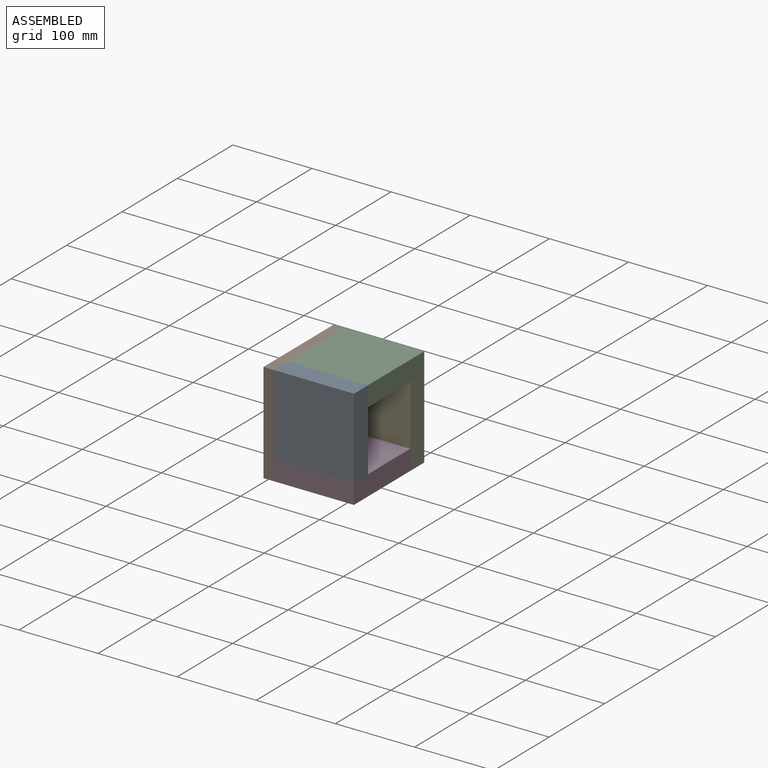
[diagram: assembled view]
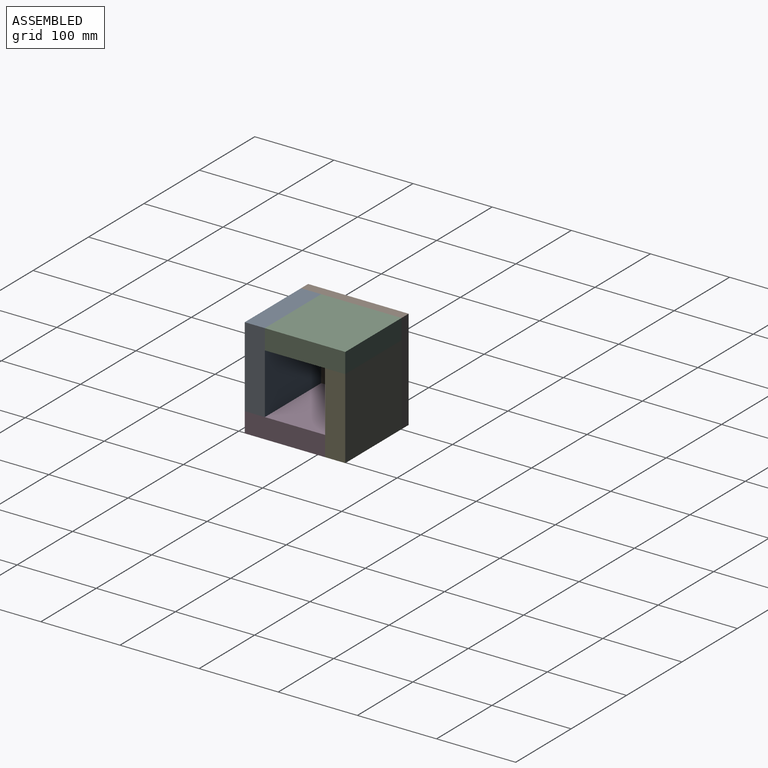
[diagram: assembled view, second angle]
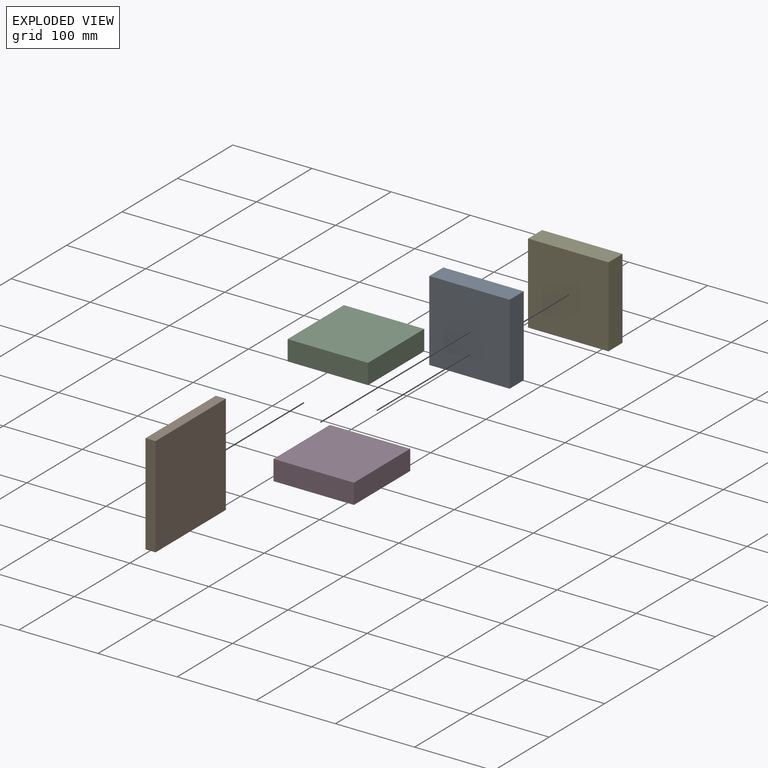
[diagram: exploded view]
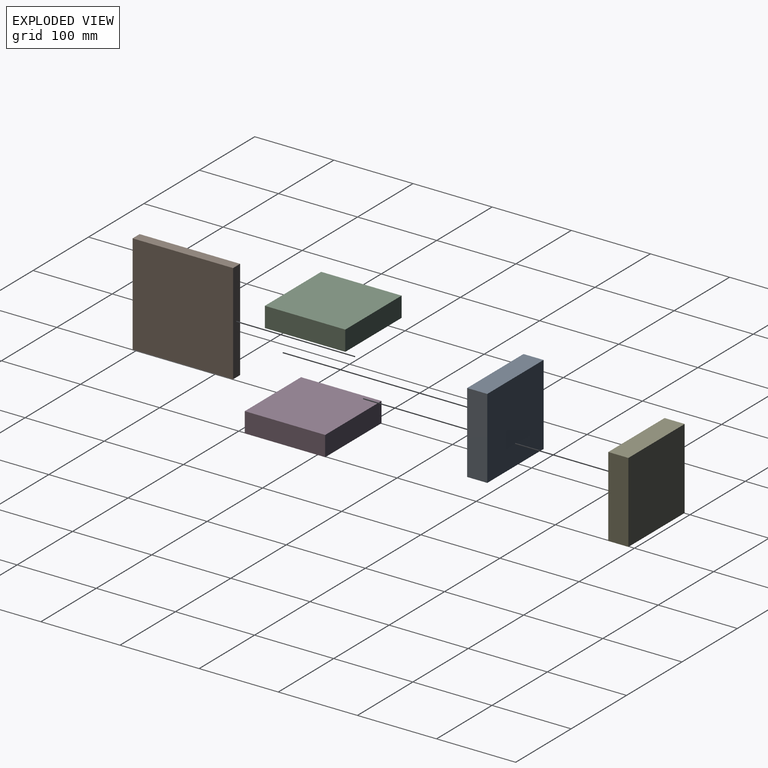
[diagram: exploded view, second angle]
ASSEMBLY  parts=5 mates=5
PART A: 6 faces, bbox 101.6x25.4x101.6 mm
  f0: plane 101.6x25.4mm, normal (0,0,1), area 2580.6mm2, adj f1,f3,f4,f5
  f1: plane 101.6x25.4mm, normal (-1,0,0), area 2580.6mm2, adj f0,f2,f4,f5
  f2: plane 101.6x25.4mm, normal (0,0,-1), area 2580.6mm2, adj f1,f3,f4,f5
  f3: plane 101.6x25.4mm, normal (1,0,0), area 2580.6mm2, adj f0,f2,f4,f5
  f4: plane 101.6x101.6mm, normal (0,-1,0), area 10322.6mm2, adj f0,f1,f2,f3
  f5: plane 101.6x101.6mm, normal (0,1,0), area 10322.6mm2, adj f0,f1,f2,f3
PART B: 6 faces, bbox 127x12.7x127 mm
  f0: plane 127x12.7mm, normal (0,0,1), area 1612.9mm2, adj f1,f3,f4,f5
  f1: plane 127x12.7mm, normal (-1,0,0), area 1612.9mm2, adj f0,f2,f4,f5
  f2: plane 127x12.7mm, normal (0,0,-1), area 1612.9mm2, adj f1,f3,f4,f5
  f3: plane 127x12.7mm, normal (1,0,0), area 1612.9mm2, adj f0,f2,f4,f5
  f4: plane 127x127mm, normal (0,-1,0), area 16129mm2, adj f0,f1,f2,f3
  f5: plane 127x127mm, normal (0,1,0), area 16129mm2, adj f0,f1,f2,f3
PART C: same geometry as A
PART D: same geometry as A
PART E: same geometry as A
PLACE A rot(axis=(0,-1,0),0deg) t=(74.66,-49.17,-82.36)mm
PLACE B rot(axis=(0.58,0.58,-0.58),120deg) t=(23.86,-11.07,-95.06)mm
PLACE C rot(axis=(0.58,0.58,0.58),120deg) t=(74.66,1.63,-31.56)mm
PLACE D rot(axis=(0.58,0.58,0.58),120deg) t=(74.66,-23.77,-133.16)mm
PLACE E rot(axis=(0,-1,0),0deg) t=(74.66,52.43,-107.76)mm
MATE fastened C.f3 <-> E.f5  axis (0,1,0) through (23.86,52.43,-56.96)mm
MATE fastened C.f4 <-> E.f0  axis (0,0,-1) through (125.46,52.43,-56.96)mm
MATE fastened A.f5 <-> C.f1  axis (0,1,0) through (125.46,-49.17,-31.56)mm
MATE fastened D.f5 <-> A.f2  axis (0,0,1) through (125.46,-74.57,-133.16)mm
MATE fastened B.f0 <-> D.f1  axis (0,1,0) through (23.86,-74.57,-158.56)mm
